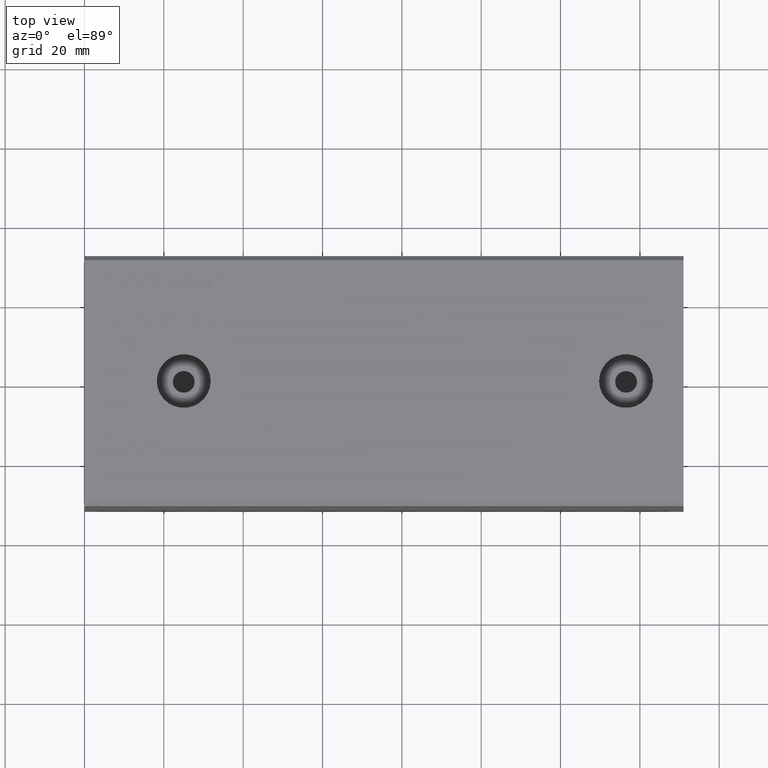
[diagram: clean part render]
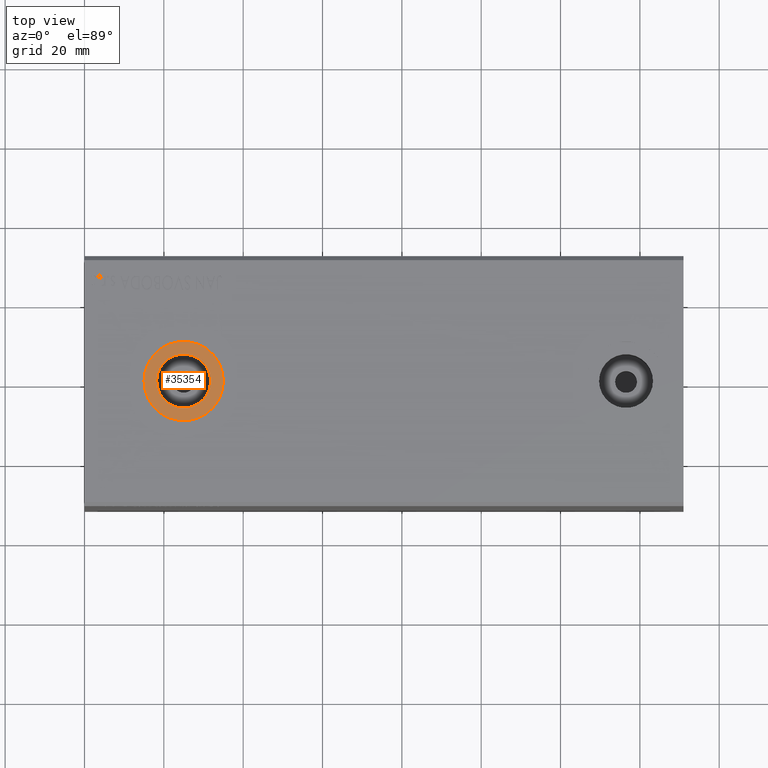
[diagram: same view with one face highlighted and labeled with its STEP entity id]
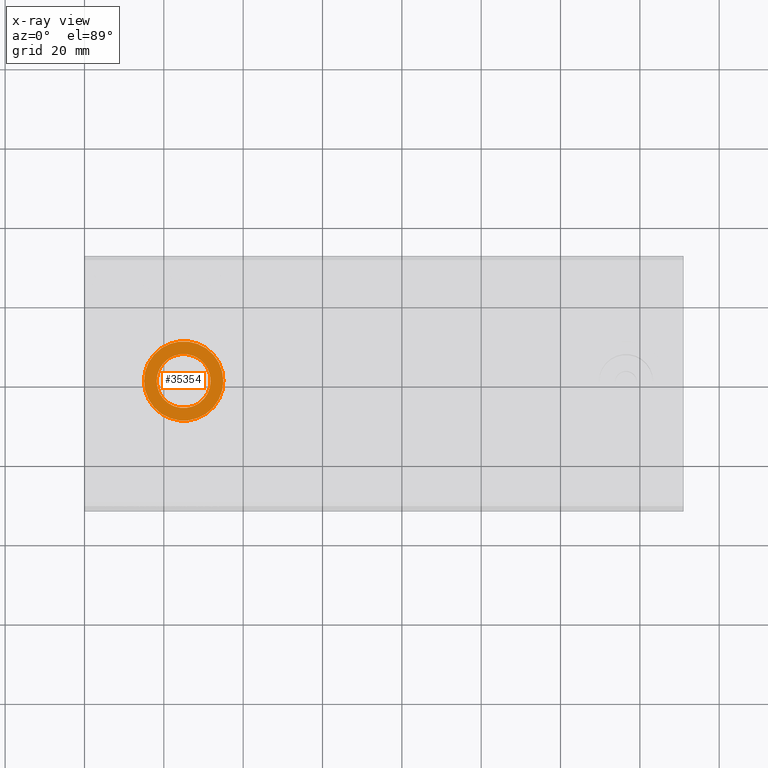
[diagram: x-ray of the same camera — body ghosted, the highlighted face saturated]
A machine part, top view. The second image highlights one B-rep face of the part: STEP entity #35354.
The next image is the same camera in x-ray: the body ghosted, the highlighted face saturated — about 0% of this face is hidden behind the body in this view.
In plain terms, the highlighted planar face has unit normal (0, 0, 1).
Its self-contained STEP definition (entity closure, byte-faithful):
#79 = DIRECTION ( 'NONE',  ( 1.000000000000000000, 0.000000000000000000, 0.000000000000000000 ) ) ;
#204 = EDGE_LOOP ( 'NONE', ( #948, #38247 ) ) ;
#275 = CARTESIAN_POINT ( 'NONE',  ( 15.00000000000000178, 2.092008537135756212E-15, 42.39999999999999147 ) ) ;
#948 = ORIENTED_EDGE ( 'NONE', *, *, #21718, .T. ) ;
#2306 = AXIS2_PLACEMENT_3D ( 'NONE', #38107, #18552, #31669 ) ;
#3651 = CIRCLE ( 'NONE', #4360, 10.00000000000000178 ) ;
#4248 = CIRCLE ( 'NONE', #12441, 10.00000000000000178 ) ;
#4360 = AXIS2_PLACEMENT_3D ( 'NONE', #29080, #19412, #79 ) ;
#5959 = VERTEX_POINT ( 'NONE', #11008 ) ;
#6566 = DIRECTION ( 'NONE',  ( 0.000000000000000000, 0.000000000000000000, 1.000000000000000000 ) ) ;
#7564 = ORIENTED_EDGE ( 'NONE', *, *, #23207, .F. ) ;
#10538 = CARTESIAN_POINT ( 'NONE',  ( 25.00000000000000000, 8.673617379884031528E-16, 42.39999999999999147 ) ) ;
#10954 = DIRECTION ( 'NONE',  ( 0.000000000000000000, 0.000000000000000000, 1.000000000000000000 ) ) ;
#11008 = CARTESIAN_POINT ( 'NONE',  ( 18.19999999999999929, 1.700121561408603067E-15, 42.39999999999999147 ) ) ;
#11073 = VERTEX_POINT ( 'NONE', #275 ) ;
#11778 = CIRCLE ( 'NONE', #35786, 6.800000000000000711 ) ;
#12441 = AXIS2_PLACEMENT_3D ( 'NONE', #19111, #32227, #29006 ) ;
#13432 = DIRECTION ( 'NONE',  ( 1.000000000000000000, 0.000000000000000000, 0.000000000000000000 ) ) ;
#13750 = DIRECTION ( 'NONE',  ( 1.000000000000000000, 0.000000000000000000, 0.000000000000000000 ) ) ;
#15125 = FACE_BOUND ( 'NONE', #24337, .T. ) ;
#18154 = CARTESIAN_POINT ( 'NONE',  ( 35.00000000000000000, 8.673617379884031528E-16, 42.39999999999999147 ) ) ;
#18552 = DIRECTION ( 'NONE',  ( 0.000000000000000000, 0.000000000000000000, 1.000000000000000000 ) ) ;
#18643 = CIRCLE ( 'NONE', #28283, 6.800000000000000711 ) ;
#19111 = CARTESIAN_POINT ( 'NONE',  ( 25.00000000000000000, 8.673617379884031528E-16, 42.39999999999999147 ) ) ;
#19412 = DIRECTION ( 'NONE',  ( 0.000000000000000000, 0.000000000000000000, 1.000000000000000000 ) ) ;
#21718 = EDGE_CURVE ( 'NONE', #26219, #11073, #4248, .T. ) ;
#22511 = EDGE_CURVE ( 'NONE', #5959, #27128, #11778, .T. ) ;
#23207 = EDGE_CURVE ( 'NONE', #27128, #5959, #18643, .T. ) ;
#24337 = EDGE_LOOP ( 'NONE', ( #7564, #41871 ) ) ;
#25013 = PLANE ( 'NONE',  #2306 ) ;
#26219 = VERTEX_POINT ( 'NONE', #18154 ) ;
#27128 = VERTEX_POINT ( 'NONE', #27360 ) ;
#27360 = CARTESIAN_POINT ( 'NONE',  ( 31.80000000000000071, 8.673617379884031528E-16, 42.39999999999999147 ) ) ;
#28232 = FACE_OUTER_BOUND ( 'NONE', #204, .T. ) ;
#28283 = AXIS2_PLACEMENT_3D ( 'NONE', #10538, #10954, #13750 ) ;
#29006 = DIRECTION ( 'NONE',  ( 1.000000000000000000, 0.000000000000000000, 0.000000000000000000 ) ) ;
#29080 = CARTESIAN_POINT ( 'NONE',  ( 25.00000000000000000, 8.673617379884031528E-16, 42.39999999999999147 ) ) ;
#31669 = DIRECTION ( 'NONE',  ( 1.000000000000000000, 0.000000000000000000, -0.000000000000000000 ) ) ;
#32227 = DIRECTION ( 'NONE',  ( 0.000000000000000000, 0.000000000000000000, 1.000000000000000000 ) ) ;
#35354 = ADVANCED_FACE ( 'NONE', ( #15125, #28232 ), #25013, .T. ) ;
#35448 = EDGE_CURVE ( 'NONE', #11073, #26219, #3651, .T. ) ;
#35786 = AXIS2_PLACEMENT_3D ( 'NONE', #39645, #6566, #13432 ) ;
#38107 = CARTESIAN_POINT ( 'NONE',  ( 25.00000000000000000, 8.673617379884031528E-16, 42.39999999999999147 ) ) ;
#38247 = ORIENTED_EDGE ( 'NONE', *, *, #35448, .T. ) ;
#39645 = CARTESIAN_POINT ( 'NONE',  ( 25.00000000000000000, 8.673617379884031528E-16, 42.39999999999999147 ) ) ;
#41871 = ORIENTED_EDGE ( 'NONE', *, *, #22511, .F. ) ;